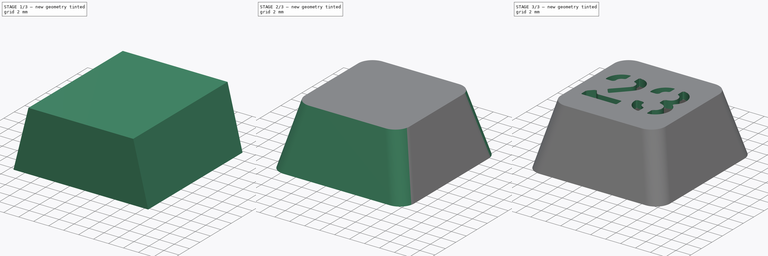
[diagram: build sequence overview — one tinted view per stage of 3, left to right]
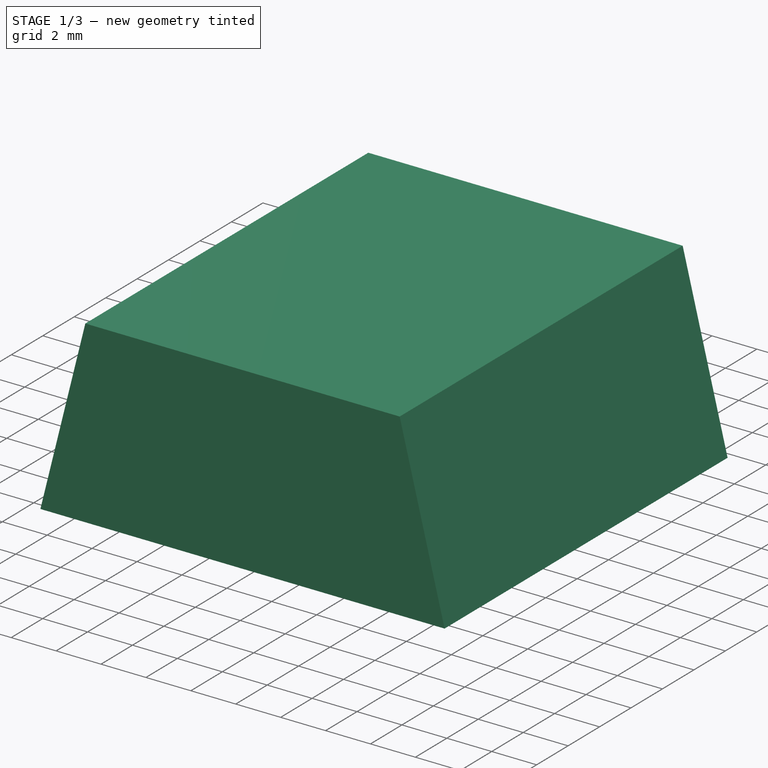
[diagram: stage 1 of 3 — iso view after this stage's code; geometry added in this stage tinted green]
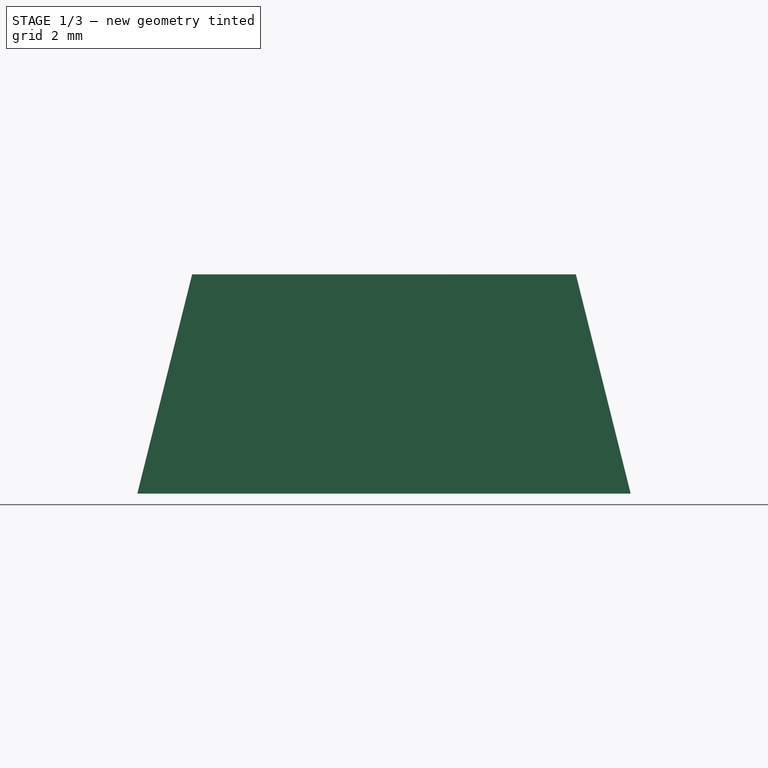
[diagram: stage 1 of 3 — front view after this stage's code; geometry added in this stage tinted green]
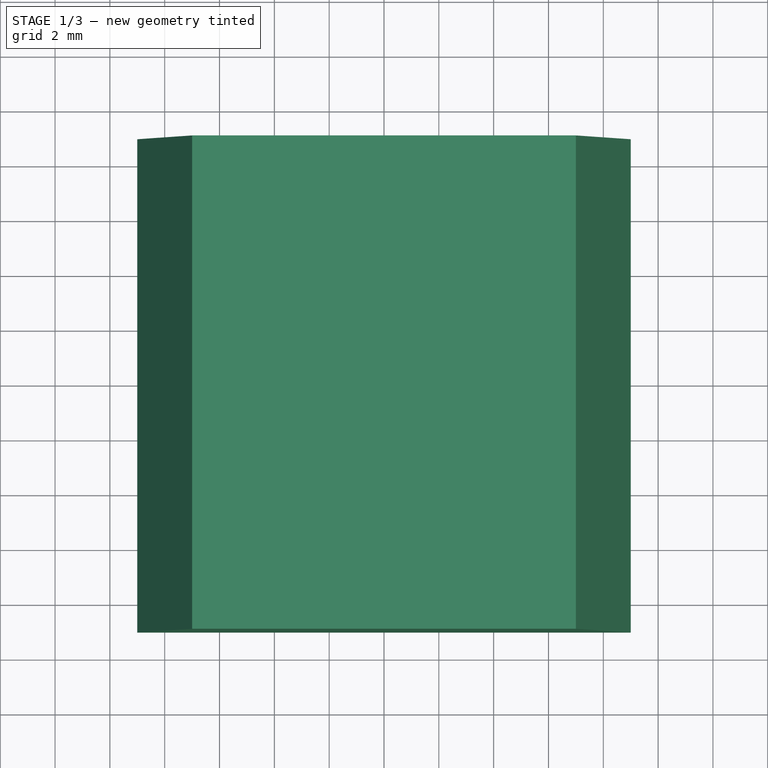
[diagram: stage 1 of 3 — top view after this stage's code; geometry added in this stage tinted green]
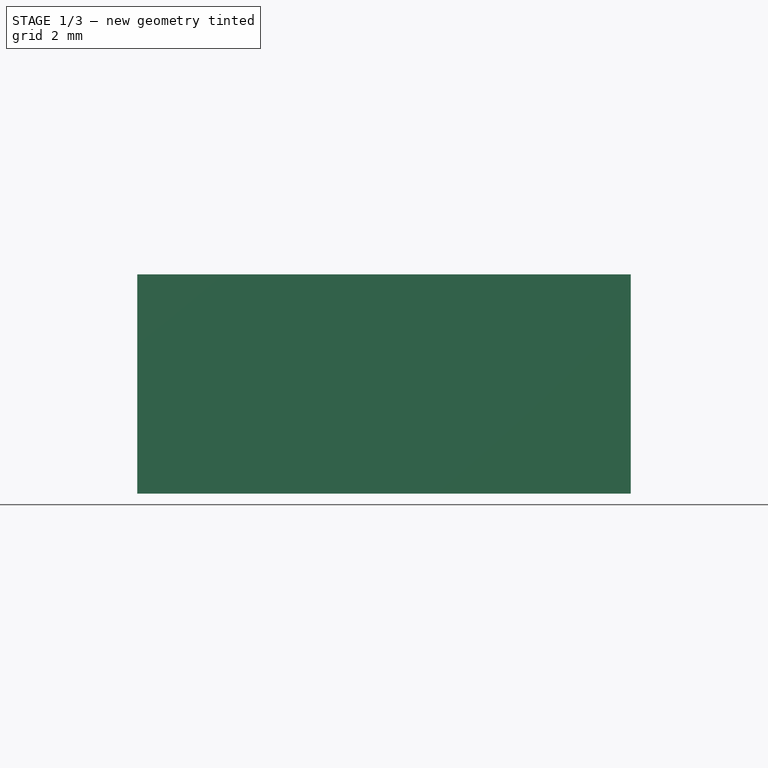
[diagram: stage 1 of 3 — right view after this stage's code; geometry added in this stage tinted green]
FCSTD DOCUMENT  (FreeCAD 1.0R38806 (Git))
Label: keycap 23
License: All rights reserved
LicenseURL: http://en.wikipedia.org/wiki/All_rights_reserved
objects: Sketcher::SketchObject×3, PartDesign::Pocket×2, Part::Part2DObjectPython×2, PartDesign::Pad×1, Part::Extrusion×1, PartDesign::Fillet×1, PartDesign::Thickness×1, PartDesign::Body×1, Part::Cut×1
note: 26 computed .brp shape members not serialized (recipe doc carries the construction recipe); baked Part::Feature solids carry a one-line shape summary decoded from their .brp

FEATURE [Sketcher::SketchObject] Sketch
  ArcFitTolerance = 1e-06
  AttachmentSupport = -> [XY_Plane]
  FullyConstrained = true
  MakeInternals = false
  MapMode = 5
  sketch-geometry (5):
    g0: LineSegment StartX=-9 StartY=-9 StartZ=0 EndX=9 EndY=-9 EndZ=0
    g1: LineSegment StartX=9 StartY=-9 StartZ=0 EndX=9 EndY=9 EndZ=0
    g2: LineSegment StartX=9 StartY=9 StartZ=0 EndX=-9 EndY=9 EndZ=0
    g3: LineSegment StartX=-9 StartY=9 StartZ=0 EndX=-9 EndY=-9 EndZ=0
    g4: GeomPoint [constr] X=0 Y=0 Z=0
  constraints (12):
    c: Coincident(g0,g1)
    c: Coincident(g1,g2)
    c: Coincident(g2,g3)
    c: Coincident(g3,g0)
    c: Horizontal(g0)
    c: Horizontal(g2)
    c: Vertical(g1)
    c: Vertical(g3)
    c: Symmetric(g2,g0,g4)
    c: Distance(g0,g2) = 18
    c: Coincident(g4,g-1)
    c: Equal(g0,g3)
FEATURE [PartDesign::Pad] Pad
  Direction = (0,0,1)
  Length = 8
  Length2 = 10
  Profile = -> Sketch
  ReferenceAxis = -> Sketch [N_Axis]
  Suppressed = false
  Type = 0
FEATURE [Sketcher::SketchObject] Sketch001
  ArcFitTolerance = 1e-06
  AttachmentSupport = -> [Pad]
  ExternalGeometry = -> [Pad]
  FullyConstrained = true
  MakeInternals = false
  MapMode = 5
  Placement = pos=(0,-9,0) rot=(1,0,0;1.5708rad)
  sketch-geometry (6):
    g0: LineSegment StartX=-9 StartY=8 StartZ=0 EndX=-9 EndY=0 EndZ=0
    g1: LineSegment StartX=9 StartY=8 StartZ=0 EndX=9 EndY=0 EndZ=0
    g2: LineSegment StartX=-9 StartY=8 StartZ=0 EndX=-7 EndY=8 EndZ=0
    g3: LineSegment StartX=9 StartY=8 StartZ=0 EndX=7 EndY=8 EndZ=0
    g4: LineSegment StartX=-7 StartY=8 StartZ=0 EndX=-9 EndY=0 EndZ=0
    g5: LineSegment StartX=7 StartY=8 StartZ=0 EndX=9 EndY=0 EndZ=0
  constraints (14):
    c: Coincident(g0,g-3)
    c: Coincident(g0,g-3)
    c: Coincident(g1,g-4)
    c: Coincident(g1,g-4)
    c: Distance(g2) = 2
    c: Coincident(g2,g0)
    c: Horizontal(g2)
    c: Coincident(g3,g1)
    c: Horizontal(g3)
    c: Equal(g2,g3)
    c: Coincident(g4,g2)
    c: Coincident(g4,g0)
    c: Coincident(g5,g3)
    c: Coincident(g5,g1)
FEATURE [PartDesign::Pocket] Pocket
  BaseFeature = -> Pad
  Direction = (0,1,-2e-16)
  Length = 5
  Length2 = 5
  Profile = -> Sketch001
  ReferenceAxis = -> Sketch001 [N_Axis]
  Suppressed = false
  Type = 1
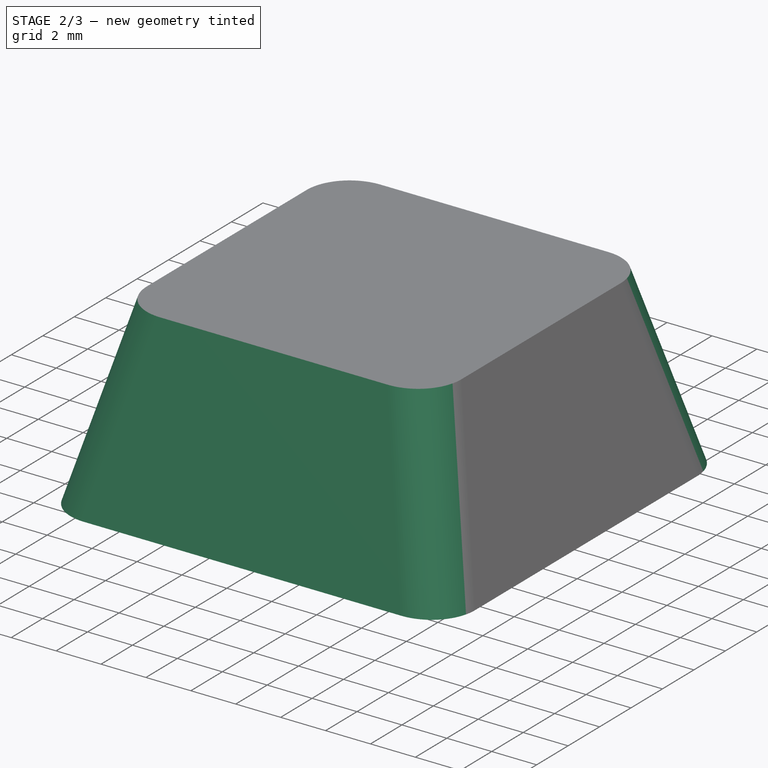
[diagram: stage 2 of 3 — iso view after this stage's code; geometry added in this stage tinted green]
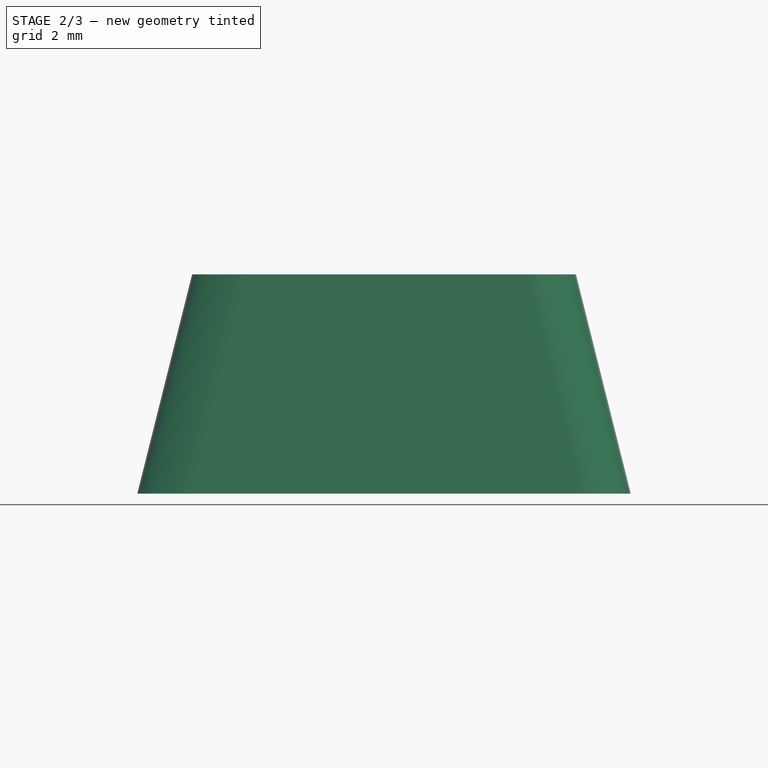
[diagram: stage 2 of 3 — front view after this stage's code; geometry added in this stage tinted green]
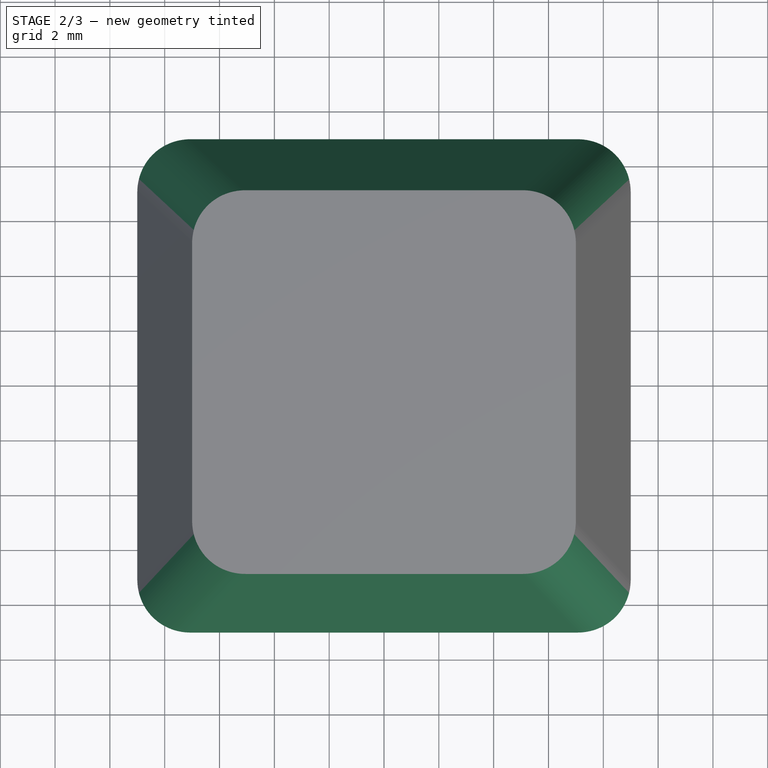
[diagram: stage 2 of 3 — top view after this stage's code; geometry added in this stage tinted green]
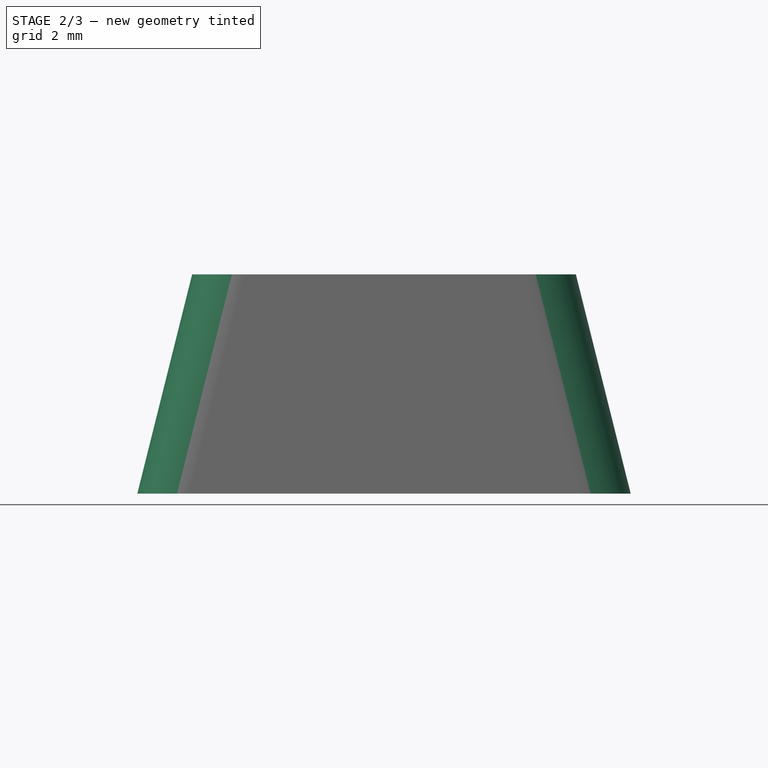
[diagram: stage 2 of 3 — right view after this stage's code; geometry added in this stage tinted green]
FEATURE [Sketcher::SketchObject] Sketch002
  ArcFitTolerance = 1e-06
  AttachmentSupport = -> [YZ_Plane]
  ExternalGeometry = -> [Pocket]
  FullyConstrained = true
  MakeInternals = false
  MapMode = 5
  Placement = pos=(0,0,0) rot=(0.57735,0.57735,0.57735;2.0944rad)
  sketch-geometry (6):
    g0: LineSegment StartX=-9 StartY=8 StartZ=0 EndX=-7 EndY=8 EndZ=0
    g1: LineSegment StartX=9 StartY=8 StartZ=0 EndX=7 EndY=8 EndZ=0
    g2: LineSegment StartX=9 StartY=8 StartZ=0 EndX=9 EndY=0 EndZ=0
    g3: LineSegment StartX=7 StartY=8 StartZ=0 EndX=9 EndY=0 EndZ=0
    g4: LineSegment StartX=-9 StartY=8 StartZ=0 EndX=-9 EndY=0 EndZ=0
    g5: LineSegment StartX=-9 StartY=0 StartZ=0 EndX=-7 EndY=8 EndZ=0
  constraints (14):
    c: Distance(g0) = 2
    c: Coincident(g0,g-3)
    c: Horizontal(g0)
    c: Horizontal(g1)
    c: Equal(g1,g0)
    c: Coincident(g-4,g1)
    c: Coincident(g2,g1)
    c: Coincident(g2,g-4)
    c: Coincident(g3,g1)
    c: Coincident(g3,g2)
    c: Coincident(g4,g0)
    c: Coincident(g4,g-3)
    c: Coincident(g5,g4)
    c: Coincident(g5,g0)
FEATURE [PartDesign::Pocket] Pocket001
  BaseFeature = -> Pocket
  Direction = (-1,0,0)
  Length = 5
  Length2 = 5
  Midplane = true
  Profile = -> Sketch002
  ReferenceAxis = -> Sketch002 [N_Axis]
  Suppressed = false
  Type = 1
FEATURE [PartDesign::Fillet] Fillet
  Base = -> Pocket001 [Edge10,Edge7,Edge5,Edge8]
  BaseFeature = -> Pocket001
  Radius = 2
  SupportTransform = false
  Suppressed = false
  UseAllEdges = false
FEATURE [PartDesign::Thickness] Thickness
  Base = -> Fillet [Face1]
  BaseFeature = -> Fillet
  Intersection = false
  Join = 1
  Mode = 0
  Reversed = true
  SupportTransform = false
  Suppressed = false
  Value = 1
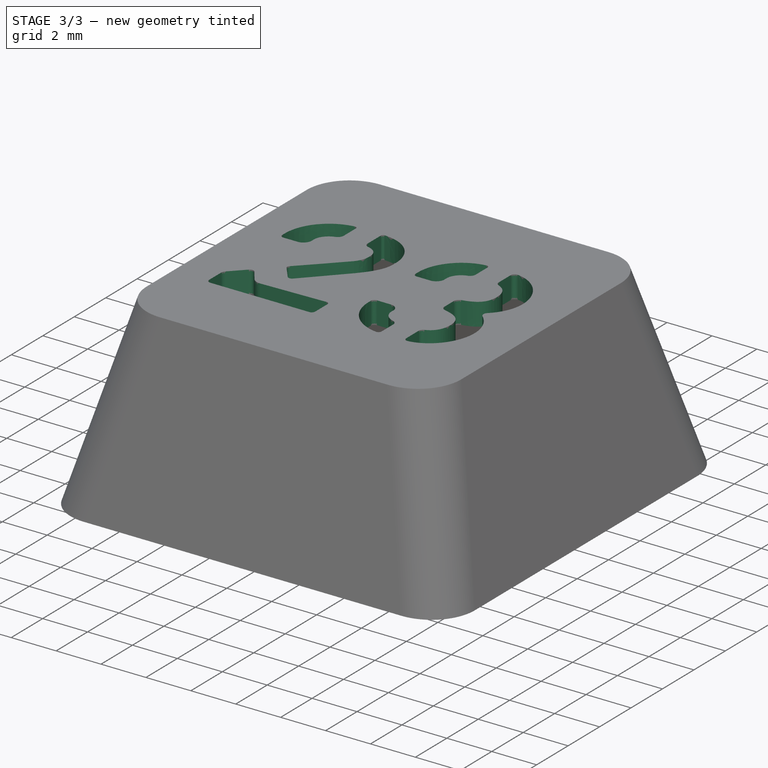
[diagram: stage 3 of 3 — iso view after this stage's code; geometry added in this stage tinted green]
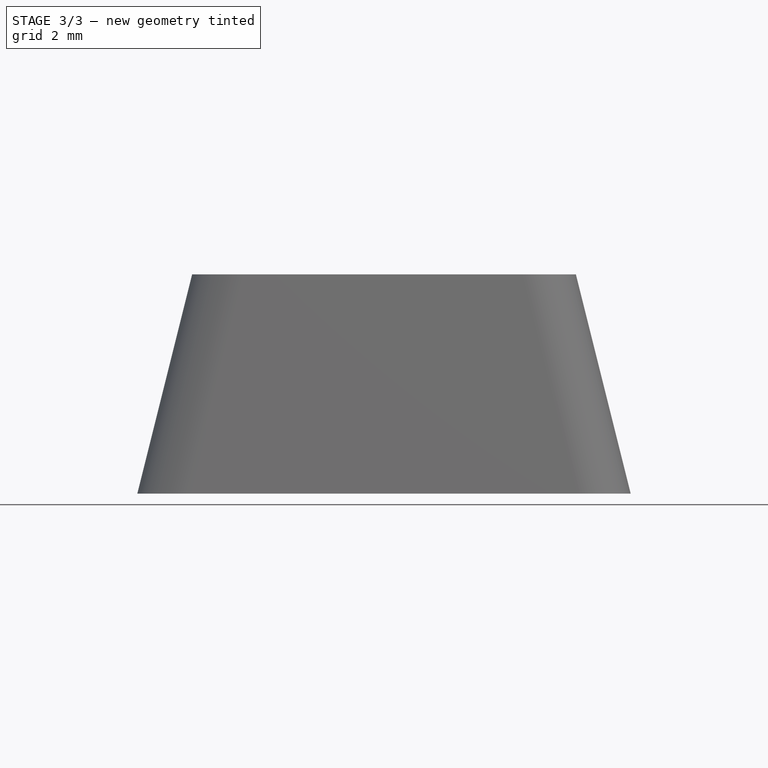
[diagram: stage 3 of 3 — front view after this stage's code; geometry added in this stage tinted green]
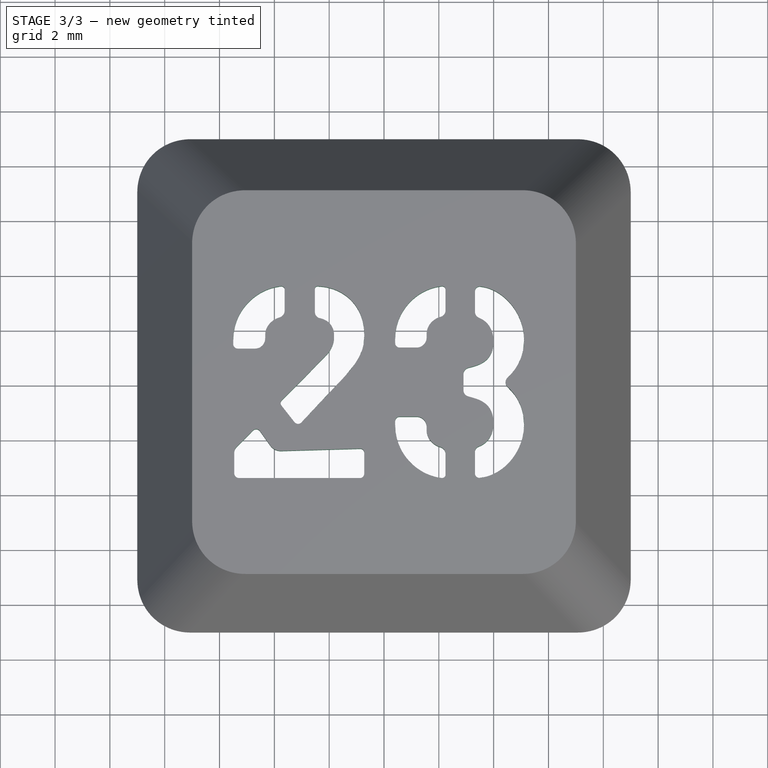
[diagram: stage 3 of 3 — top view after this stage's code; geometry added in this stage tinted green]
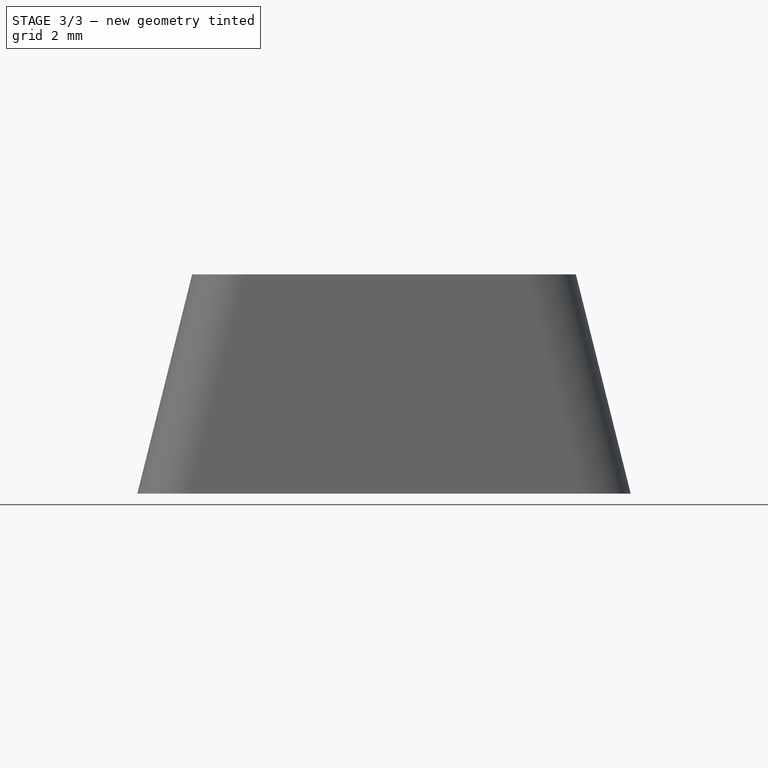
[diagram: stage 3 of 3 — right view after this stage's code; geometry added in this stage tinted green]
FEATURE [Part::Part2DObjectPython] ShapeString  # Draft 2D object (typed FeaturePython)
  FontFile = <userpath>/Downloads/Marsh Stencil Regular.otf
  Fuse = false
  Justification = 6
  JustificationReference = 0
  KeepLeftMargin = false
  MakeFace = true
  ObliqueAngle = 0
  ScaleToSize = true
  Size = 10
  String = 0123456789 ABCDEFGHIJKLMNOPQRSTUVWXYZ
  Tracking = 0
FEATURE [Part::Part2DObjectPython] ShapeString001  # Draft 2D object (typed FeaturePython)
  FontFile = <userpath>/Downloads/Marsh Stencil Regular.otf
  Fuse = false
  Justification = 6
  JustificationReference = 0
  KeepLeftMargin = false
  MakeFace = true
  ObliqueAngle = 0
  Placement = pos=(0,0,-1) rot=(0,0,1;0rad)
  ScaleToSize = true
  Size = 7
  String = 23
  Tracking = 0
FEATURE [Part::Extrusion] Extrude
  Base = -> ShapeString001
  Dir = (0,0,1)
  DirMode = 2
  FaceMakerClass = Part::FaceMakerBullseye
  FaceMakerMode = 3
  LengthFwd = 1
  LengthRev = 0
  Placement = pos=(-5.5,-3.5,8) rot=(0,0,1;0rad)
  Solid = false
  Symmetric = false
FEATURE [PartDesign::Body] Body
  AllowCompound = false
  Group = -> [Sketch,Pad,Sketch001,Pocket,Sketch002,Pocket001,Fillet,Thickness]
  Origin = -> Origin
  Tip = -> Thickness
FEATURE [Part::Cut] Cut
  Base = -> Body
  Tool = -> Extrude
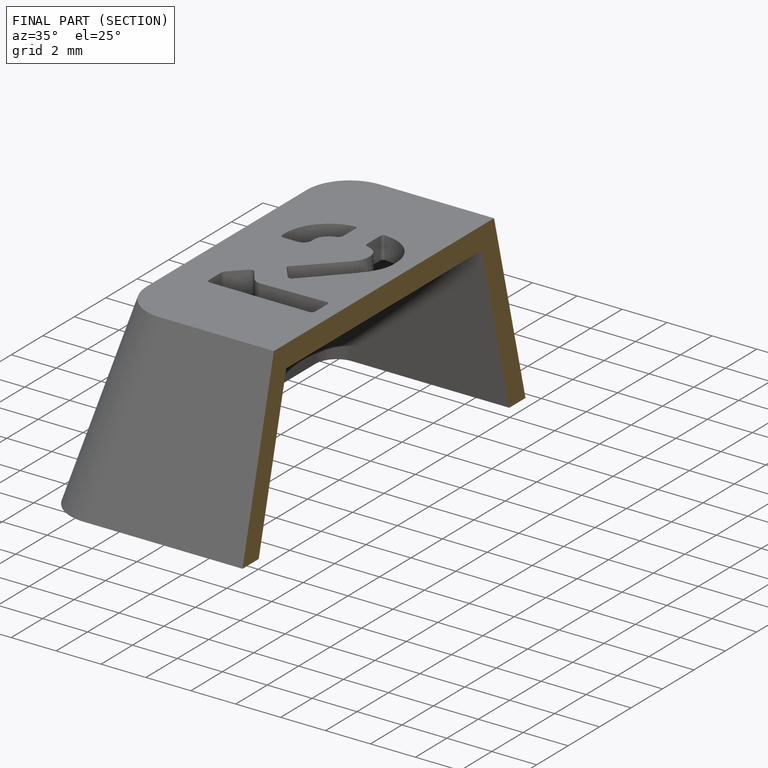
[diagram: finished part — half-section view (interior)]
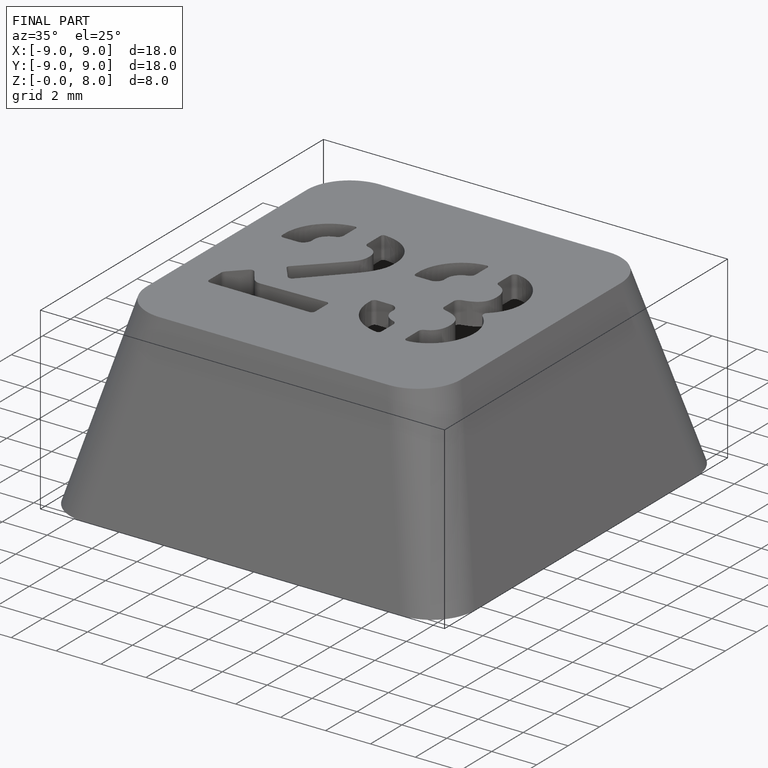
[diagram: finished part — iso view with bounding-box wireframe]
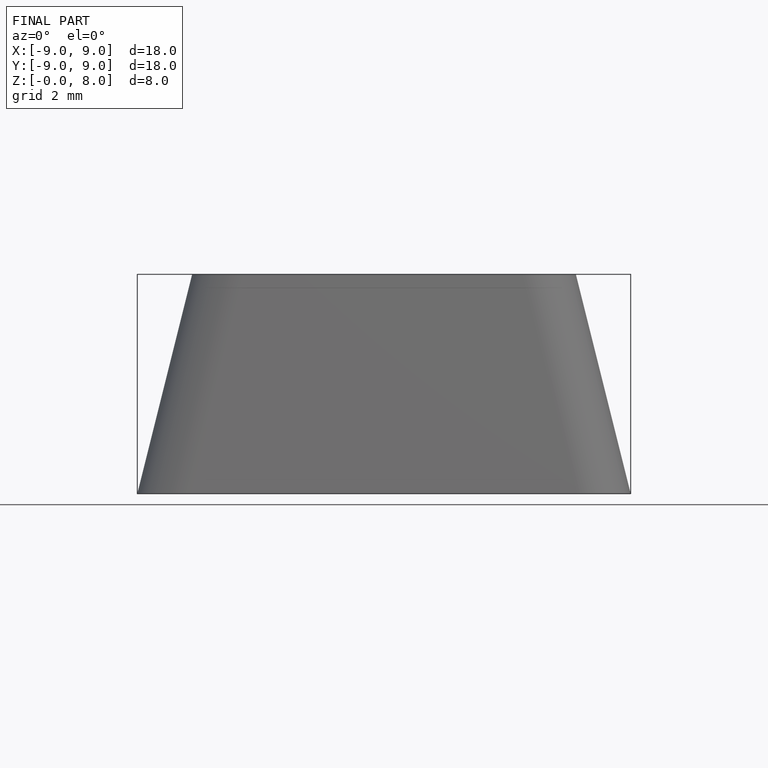
[diagram: finished part — front view with bounding-box wireframe]
